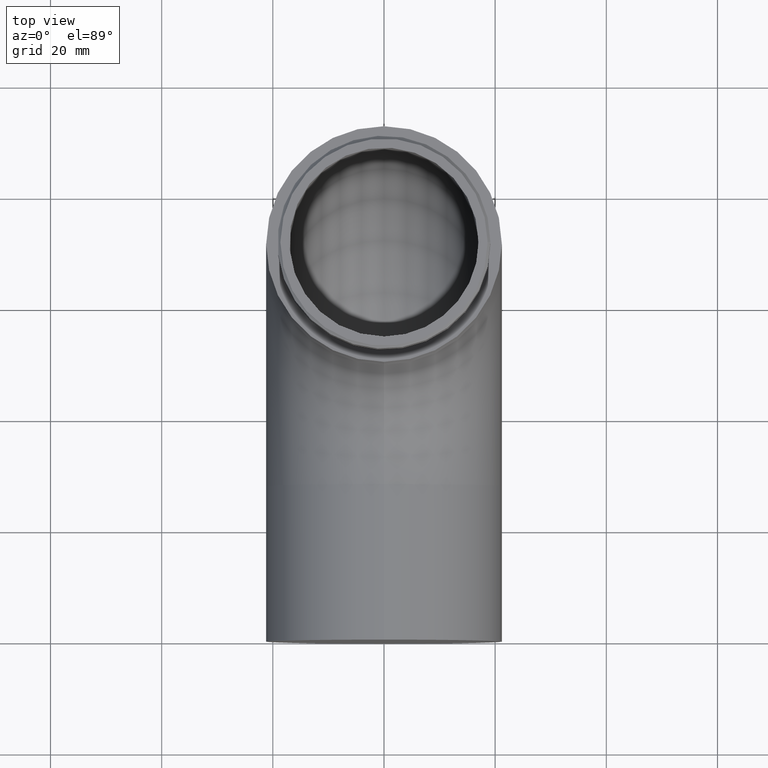
[diagram: clean part render]
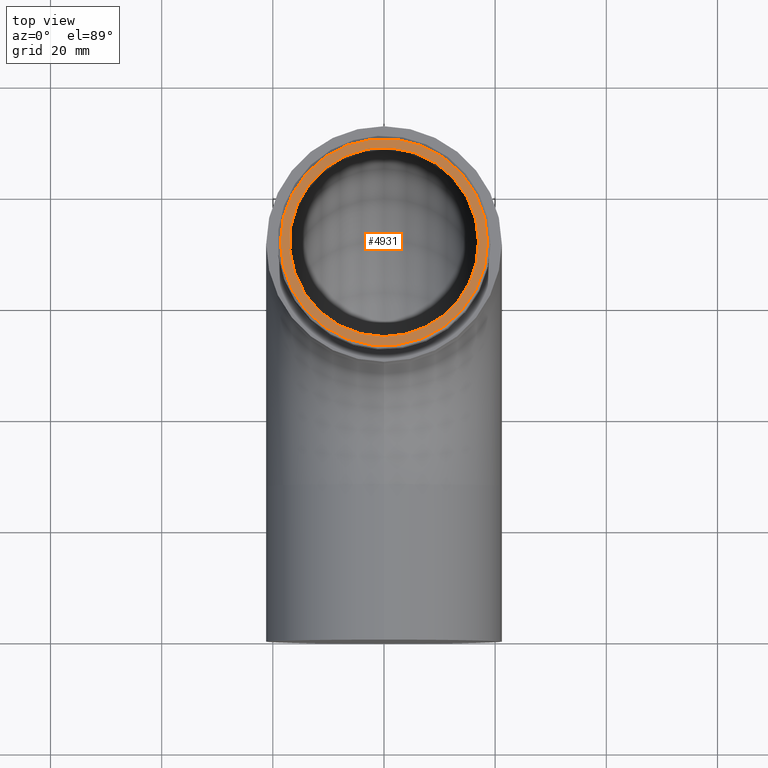
[diagram: same view with one face highlighted and labeled with its STEP entity id]
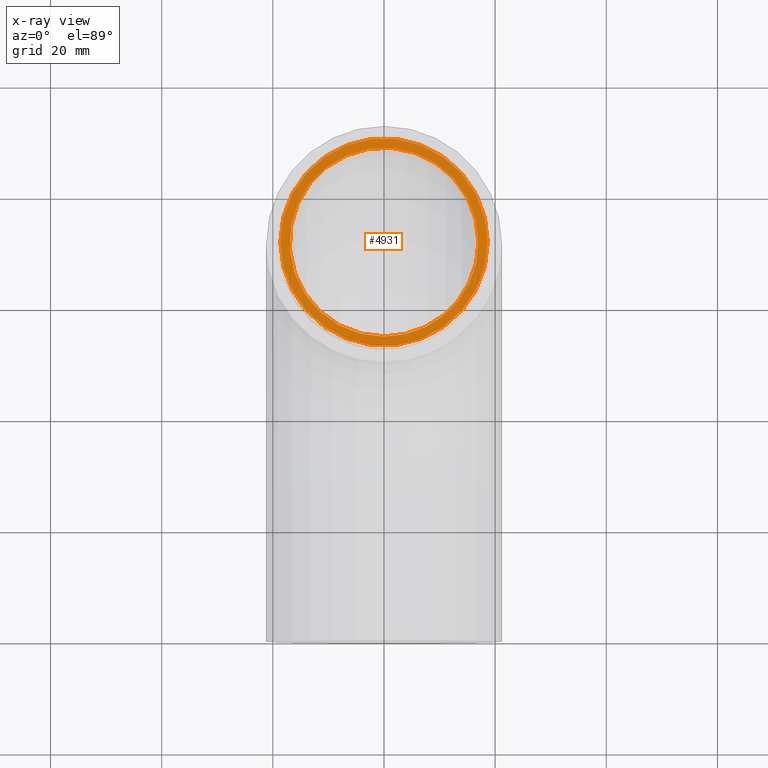
[diagram: x-ray of the same camera — body ghosted, the highlighted face saturated]
A machine part, top view. The second image highlights one B-rep face of the part: STEP entity #4931.
The next image is the same camera in x-ray: the body ghosted, the highlighted face saturated — about 0% of this face is hidden behind the body in this view.
In plain terms, the highlighted planar face has unit normal (0, 0, 1).
Its self-contained STEP definition (entity closure, byte-faithful):
#2092 = ORIENTED_EDGE ( 'NONE', *, *, #6206, .F. ) ;
#2259 = DIRECTION ( 'NONE',  ( 1.000000000000000000, 0.0000000000000000000, 0.0000000000000000000 ) ) ;
#2557 = AXIS2_PLACEMENT_3D ( 'NONE', #4897, #3948, #10584 ) ;
#3249 = DIRECTION ( 'NONE',  ( 1.000000000000000000, 0.0000000000000000000, -0.0000000000000000000 ) ) ;
#3465 = EDGE_LOOP ( 'NONE', ( #13742 ) ) ;
#3540 = CARTESIAN_POINT ( 'NONE',  ( 18.64999999999999900, 70.80000000000001100, 62.79999999999999700 ) ) ;
#3602 = FACE_OUTER_BOUND ( 'NONE', #3465, .T. ) ;
#3948 = DIRECTION ( 'NONE',  ( 0.0000000000000000000, 0.0000000000000000000, 1.000000000000000000 ) ) ;
#4298 = PLANE ( 'NONE',  #12157 ) ;
#4897 = CARTESIAN_POINT ( 'NONE',  ( 0.0000000000000000000, 70.80000000000001100, 62.79999999999999700 ) ) ;
#4931 = ADVANCED_FACE ( 'NONE', ( #3602, #12589 ), #4298, .T. ) ;
#4995 = VERTEX_POINT ( 'NONE', #3540 ) ;
#5490 = DIRECTION ( 'NONE',  ( 0.0000000000000000000, 0.0000000000000000000, 1.000000000000000000 ) ) ;
#6206 = EDGE_CURVE ( 'NONE', #13605, #13605, #9263, .T. ) ;
#9165 = CARTESIAN_POINT ( 'NONE',  ( 16.99999999999999300, 70.80000000000001100, 62.79999999999999700 ) ) ;
#9263 = CIRCLE ( 'NONE', #2557, 16.99999999999999300 ) ;
#9363 = EDGE_LOOP ( 'NONE', ( #2092 ) ) ;
#10005 = EDGE_CURVE ( 'NONE', #4995, #4995, #13076, .T. ) ;
#10495 = AXIS2_PLACEMENT_3D ( 'NONE', #13280, #5490, #2259 ) ;
#10584 = DIRECTION ( 'NONE',  ( 1.000000000000000000, 0.0000000000000000000, 0.0000000000000000000 ) ) ;
#12016 = DIRECTION ( 'NONE',  ( 0.0000000000000000000, 0.0000000000000000000, 1.000000000000000000 ) ) ;
#12157 = AXIS2_PLACEMENT_3D ( 'NONE', #13060, #12016, #3249 ) ;
#12589 = FACE_BOUND ( 'NONE', #9363, .T. ) ;
#13060 = CARTESIAN_POINT ( 'NONE',  ( 0.0000000000000000000, 70.80000000000001100, 62.79999999999999700 ) ) ;
#13076 = CIRCLE ( 'NONE', #10495, 18.64999999999999900 ) ;
#13280 = CARTESIAN_POINT ( 'NONE',  ( 0.0000000000000000000, 70.80000000000001100, 62.79999999999999700 ) ) ;
#13605 = VERTEX_POINT ( 'NONE', #9165 ) ;
#13742 = ORIENTED_EDGE ( 'NONE', *, *, #10005, .T. ) ;